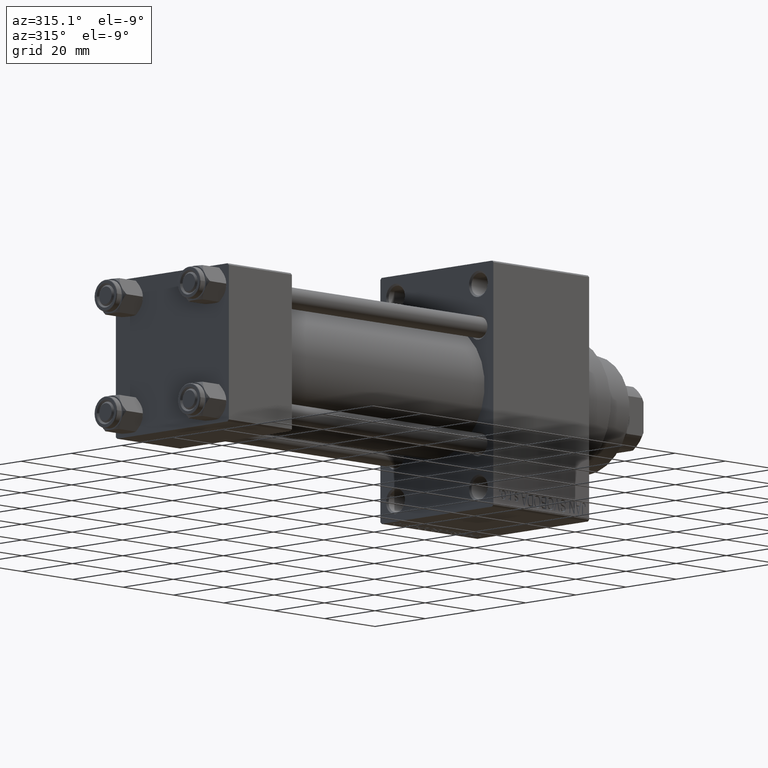
[diagram: clean part render]
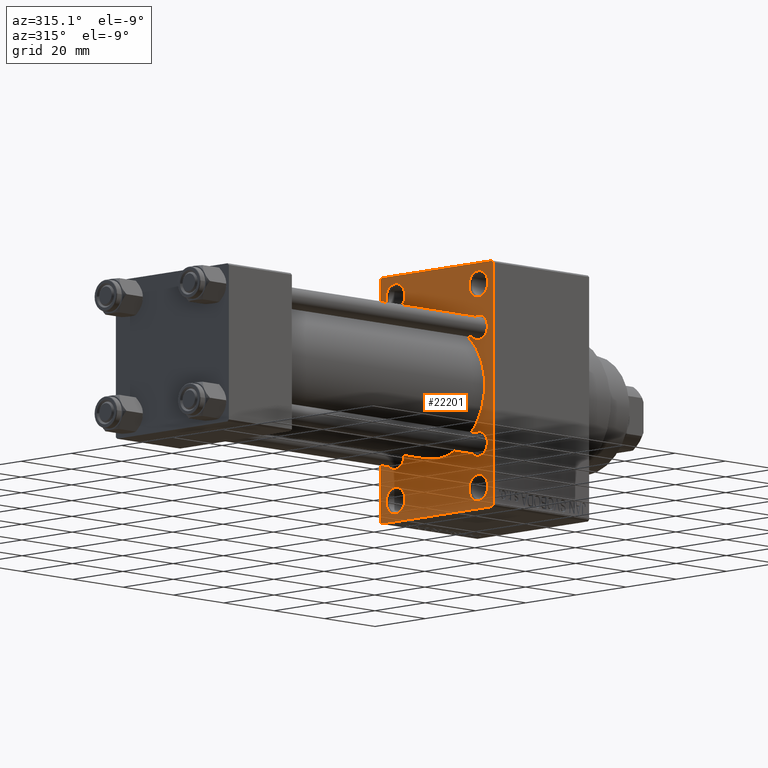
[diagram: same view with one face highlighted and labeled with its STEP entity id]
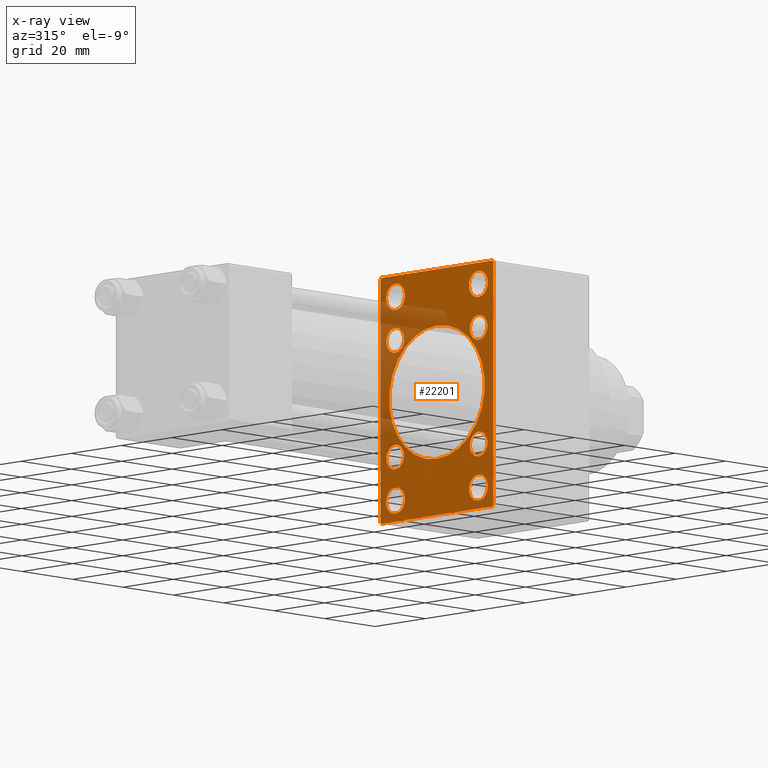
[diagram: x-ray of the same camera — body ghosted, the highlighted face saturated]
A machine part, auxiliary view. The second image highlights one B-rep face of the part: STEP entity #22201.
The next image is the same camera in x-ray: the body ghosted, the highlighted face saturated — about 21% of this face is hidden behind the body in this view.
In plain terms, the highlighted planar face has unit normal (-1, 0, 0).
Its self-contained STEP definition (entity closure, byte-faithful):
#157 = CARTESIAN_POINT ( 'NONE',  ( 105.0000000000000142, -16.50000000000000000, 29.00000000000000711 ) ) ;
#773 = ORIENTED_EDGE ( 'NONE', *, *, #35898, .T. ) ;
#812 = VERTEX_POINT ( 'NONE', #14534 ) ;
#868 = EDGE_LOOP ( 'NONE', ( #29593, #22545 ) ) ;
#870 = FACE_BOUND ( 'NONE', #8402, .T. ) ;
#884 = CARTESIAN_POINT ( 'NONE',  ( 105.0000000000000142, 21.99999999999999645, -35.00000000000000000 ) ) ;
#975 = DIRECTION ( 'NONE',  ( 1.000000000000000000, 0.000000000000000000, 0.000000000000000000 ) ) ;
#978 = EDGE_CURVE ( 'NONE', #30605, #9976, #42827, .T. ) ;
#1110 = DIRECTION ( 'NONE',  ( -0.000000000000000000, 0.000000000000000000, 1.000000000000000000 ) ) ;
#1122 = DIRECTION ( 'NONE',  ( 0.000000000000000000, 0.000000000000000000, -1.000000000000000000 ) ) ;
#1346 = DIRECTION ( 'NONE',  ( -1.000000000000000000, 0.000000000000000000, -0.000000000000000000 ) ) ;
#1371 = AXIS2_PLACEMENT_3D ( 'NONE', #17469, #21507, #16763 ) ;
#1666 = DIRECTION ( 'NONE',  ( 0.000000000000000000, 0.000000000000000000, -1.000000000000000000 ) ) ;
#2115 = CARTESIAN_POINT ( 'NONE',  ( 105.0000000000000142, 16.50000000000000000, -25.25000000000009948 ) ) ;
#2210 = VERTEX_POINT ( 'NONE', #2115 ) ;
#2261 = AXIS2_PLACEMENT_3D ( 'NONE', #157, #28826, #36931 ) ;
#2579 = AXIS2_PLACEMENT_3D ( 'NONE', #18202, #975, #14868 ) ;
#2844 = ORIENTED_EDGE ( 'NONE', *, *, #9799, .T. ) ;
#3113 = CARTESIAN_POINT ( 'NONE',  ( 105.0000000000000142, 16.59999999999999787, -13.09999999999999787 ) ) ;
#3239 = DIRECTION ( 'NONE',  ( 1.000000000000000000, 0.000000000000000000, 0.000000000000000000 ) ) ;
#3358 = CIRCLE ( 'NONE', #2579, 3.749999999999885425 ) ;
#3401 = ORIENTED_EDGE ( 'NONE', *, *, #8366, .T. ) ;
#3477 = EDGE_LOOP ( 'NONE', ( #39412, #45117, #42263, #13581, #25086, #40739, #43202, #34432 ) ) ;
#3483 = VECTOR ( 'NONE', #33588, 1000.000000000000114 ) ;
#3523 = EDGE_CURVE ( 'NONE', #44610, #8597, #15873, .T. ) ;
#3662 = CIRCLE ( 'NONE', #1371, 3.500000000000006661 ) ;
#3766 = AXIS2_PLACEMENT_3D ( 'NONE', #40738, #1346, #1110 ) ;
#3823 = VERTEX_POINT ( 'NONE', #46676 ) ;
#3854 = EDGE_LOOP ( 'NONE', ( #3401, #16388 ) ) ;
#3864 = AXIS2_PLACEMENT_3D ( 'NONE', #6884, #31951, #10485 ) ;
#4187 = ORIENTED_EDGE ( 'NONE', *, *, #38868, .T. ) ;
#4443 = CIRCLE ( 'NONE', #10559, 19.00000000000000000 ) ;
#4636 = EDGE_LOOP ( 'NONE', ( #25228, #41855 ) ) ;
#4650 = EDGE_CURVE ( 'NONE', #34070, #37117, #23184, .T. ) ;
#4706 = VERTEX_POINT ( 'NONE', #7137 ) ;
#4872 = CARTESIAN_POINT ( 'NONE',  ( 105.0000000000000142, -28.49999999999999289, -28.49999999999999289 ) ) ;
#5154 = FACE_BOUND ( 'NONE', #45948, .T. ) ;
#5353 = AXIS2_PLACEMENT_3D ( 'NONE', #9212, #12566, #24020 ) ;
#5717 = DIRECTION ( 'NONE',  ( 0.000000000000000000, -1.000000000000000000, 0.000000000000000000 ) ) ;
#5910 = CARTESIAN_POINT ( 'NONE',  ( 105.0000000000000142, -16.50000000000000000, -32.74999999999989342 ) ) ;
#5979 = CARTESIAN_POINT ( 'NONE',  ( 105.0000000000000142, -16.50000000000000000, -25.25000000000009948 ) ) ;
#6085 = CARTESIAN_POINT ( 'NONE',  ( 105.0000000000000142, -21.99999999999997513, -35.00000000000000000 ) ) ;
#6335 = ORIENTED_EDGE ( 'NONE', *, *, #44783, .T. ) ;
#6596 = DIRECTION ( 'NONE',  ( 1.000000000000000000, 0.000000000000000000, 0.000000000000000000 ) ) ;
#6716 = EDGE_CURVE ( 'NONE', #18221, #8597, #12430, .T. ) ;
#6767 = CARTESIAN_POINT ( 'NONE',  ( 105.0000000000000142, 16.59999999999999787, -16.60000000000000497 ) ) ;
#6792 = AXIS2_PLACEMENT_3D ( 'NONE', #24037, #42393, #34754 ) ;
#6884 = CARTESIAN_POINT ( 'NONE',  ( 105.0000000000000142, -16.59999999999999076, -16.60000000000000853 ) ) ;
#6925 = CIRCLE ( 'NONE', #13794, 3.749999999999895639 ) ;
#7137 = CARTESIAN_POINT ( 'NONE',  ( 105.0000000000000142, 21.99999999999999645, 35.00000000000000000 ) ) ;
#7552 = CARTESIAN_POINT ( 'NONE',  ( 105.0000000000000142, -21.99999999999998934, 35.00000000000000000 ) ) ;
#7659 = CARTESIAN_POINT ( 'NONE',  ( 105.0000000000000142, -16.50000000000000000, -28.99999999999999289 ) ) ;
#7739 = EDGE_CURVE ( 'NONE', #20029, #34331, #46092, .T. ) ;
#7799 = VERTEX_POINT ( 'NONE', #5910 ) ;
#8280 = FACE_BOUND ( 'NONE', #17570, .T. ) ;
#8366 = EDGE_CURVE ( 'NONE', #2210, #26941, #32400, .T. ) ;
#8402 = EDGE_LOOP ( 'NONE', ( #45724, #4187 ) ) ;
#8597 = VERTEX_POINT ( 'NONE', #10571 ) ;
#8698 = AXIS2_PLACEMENT_3D ( 'NONE', #16731, #20540, #17434 ) ;
#8741 = AXIS2_PLACEMENT_3D ( 'NONE', #24219, #42335, #35407 ) ;
#9212 = CARTESIAN_POINT ( 'NONE',  ( 105.0000000000000142, -16.50000000000000000, -28.99999999999999289 ) ) ;
#9312 = VECTOR ( 'NONE', #31123, 1000.000000000000114 ) ;
#9344 = EDGE_CURVE ( 'NONE', #18221, #11885, #40977, .T. ) ;
#9370 = CARTESIAN_POINT ( 'NONE',  ( 105.0000000000000142, 16.59999999999999787, 13.09999999999999609 ) ) ;
#9515 = EDGE_CURVE ( 'NONE', #31093, #29765, #19735, .T. ) ;
#9799 = EDGE_CURVE ( 'NONE', #37117, #34070, #11881, .T. ) ;
#9976 = VERTEX_POINT ( 'NONE', #14418 ) ;
#10122 = CARTESIAN_POINT ( 'NONE',  ( 105.0000000000000142, -16.59999999999999076, 13.10000000000000142 ) ) ;
#10139 = CARTESIAN_POINT ( 'NONE',  ( 105.0000000000000142, 28.49999999999999645, -28.49999999999999645 ) ) ;
#10485 = DIRECTION ( 'NONE',  ( 0.000000000000000000, 0.000000000000000000, 1.000000000000000000 ) ) ;
#10559 = AXIS2_PLACEMENT_3D ( 'NONE', #47013, #12345, #1122 ) ;
#10571 = CARTESIAN_POINT ( 'NONE',  ( 105.0000000000000142, -22.50000000000000355, -34.49999999999998579 ) ) ;
#11090 = DIRECTION ( 'NONE',  ( 1.000000000000000000, 0.000000000000000000, 0.000000000000000000 ) ) ;
#11311 = AXIS2_PLACEMENT_3D ( 'NONE', #47075, #39230, #36354 ) ;
#11555 = VERTEX_POINT ( 'NONE', #9370 ) ;
#11875 = FACE_BOUND ( 'NONE', #46229, .T. ) ;
#11881 = CIRCLE ( 'NONE', #38537, 3.500000000000006661 ) ;
#11885 = VERTEX_POINT ( 'NONE', #7552 ) ;
#12262 = DIRECTION ( 'NONE',  ( 1.000000000000000000, 0.000000000000000000, 0.000000000000000000 ) ) ;
#12345 = DIRECTION ( 'NONE',  ( 1.000000000000000000, 0.000000000000000000, 0.000000000000000000 ) ) ;
#12430 = LINE ( 'NONE', #34131, #27024 ) ;
#12503 = DIRECTION ( 'NONE',  ( 0.000000000000000000, 0.000000000000000000, 1.000000000000000000 ) ) ;
#12566 = DIRECTION ( 'NONE',  ( 1.000000000000000000, 0.000000000000000000, 0.000000000000000000 ) ) ;
#13538 = VERTEX_POINT ( 'NONE', #5979 ) ;
#13581 = ORIENTED_EDGE ( 'NONE', *, *, #9344, .T. ) ;
#13794 = AXIS2_PLACEMENT_3D ( 'NONE', #7659, #33653, #26497 ) ;
#14000 = VECTOR ( 'NONE', #19447, 1000.000000000000114 ) ;
#14134 = AXIS2_PLACEMENT_3D ( 'NONE', #45762, #45043, #42186 ) ;
#14418 = CARTESIAN_POINT ( 'NONE',  ( 105.0000000000000142, -16.59999999999999076, -13.10000000000000142 ) ) ;
#14534 = CARTESIAN_POINT ( 'NONE',  ( 105.0000000000000142, 16.50000000000000000, 32.74999999999989342 ) ) ;
#14868 = DIRECTION ( 'NONE',  ( 0.000000000000000000, 0.000000000000000000, 1.000000000000000000 ) ) ;
#15873 = LINE ( 'NONE', #4872, #14000 ) ;
#16060 = LINE ( 'NONE', #27028, #17633 ) ;
#16388 = ORIENTED_EDGE ( 'NONE', *, *, #19259, .T. ) ;
#16731 = CARTESIAN_POINT ( 'NONE',  ( 105.0000000000000142, 16.59999999999999787, -16.60000000000000497 ) ) ;
#16763 = DIRECTION ( 'NONE',  ( 0.000000000000000000, 0.000000000000000000, 1.000000000000000000 ) ) ;
#17434 = DIRECTION ( 'NONE',  ( 0.000000000000000000, 0.000000000000000000, 1.000000000000000000 ) ) ;
#17469 = CARTESIAN_POINT ( 'NONE',  ( 105.0000000000000142, 16.59999999999999787, 16.60000000000000497 ) ) ;
#17570 = EDGE_LOOP ( 'NONE', ( #34293, #34076 ) ) ;
#17633 = VECTOR ( 'NONE', #44453, 1000.000000000000000 ) ;
#17929 = EDGE_CURVE ( 'NONE', #11555, #25171, #33376, .T. ) ;
#17944 = VECTOR ( 'NONE', #5717, 1000.000000000000000 ) ;
#18105 = ORIENTED_EDGE ( 'NONE', *, *, #25739, .T. ) ;
#18202 = CARTESIAN_POINT ( 'NONE',  ( 105.0000000000000142, 16.50000000000000000, 29.00000000000000355 ) ) ;
#18221 = VERTEX_POINT ( 'NONE', #30173 ) ;
#18726 = CARTESIAN_POINT ( 'NONE',  ( 105.0000000000000142, -16.50000000000000000, 29.00000000000000711 ) ) ;
#18734 = EDGE_CURVE ( 'NONE', #25171, #11555, #3662, .T. ) ;
#18760 = EDGE_CURVE ( 'NONE', #40146, #29119, #4443, .T. ) ;
#19060 = CARTESIAN_POINT ( 'NONE',  ( 105.0000000000000142, -16.59999999999999076, 20.10000000000001208 ) ) ;
#19259 = EDGE_CURVE ( 'NONE', #26941, #2210, #31868, .T. ) ;
#19267 = CARTESIAN_POINT ( 'NONE',  ( 105.0000000000000142, -28.49999999999999645, 28.49999999999999645 ) ) ;
#19447 = DIRECTION ( 'NONE',  ( 0.000000000000000000, -0.7071067811865474617, 0.7071067811865474617 ) ) ;
#19735 = LINE ( 'NONE', #38336, #31690 ) ;
#20029 = VERTEX_POINT ( 'NONE', #19060 ) ;
#20540 = DIRECTION ( 'NONE',  ( 1.000000000000000000, 0.000000000000000000, 0.000000000000000000 ) ) ;
#21399 = CARTESIAN_POINT ( 'NONE',  ( 105.0000000000000142, -2.602085213965210642E-15, 0.000000000000000000 ) ) ;
#21507 = DIRECTION ( 'NONE',  ( 1.000000000000000000, 0.000000000000000000, 0.000000000000000000 ) ) ;
#22019 = EDGE_CURVE ( 'NONE', #24326, #33519, #28166, .T. ) ;
#22201 = ADVANCED_FACE ( 'NONE', ( #45006, #37388, #23551, #11875, #41435, #34044, #5154, #8280, #870, #27126 ), #41674, .T. ) ;
#22379 = AXIS2_PLACEMENT_3D ( 'NONE', #39292, #6596, #24522 ) ;
#22545 = ORIENTED_EDGE ( 'NONE', *, *, #17929, .T. ) ;
#23184 = CIRCLE ( 'NONE', #8698, 3.500000000000006661 ) ;
#23551 = FACE_BOUND ( 'NONE', #3854, .T. ) ;
#23883 = CARTESIAN_POINT ( 'NONE',  ( 105.0000000000000142, 22.49999999999999645, 35.00000000000000000 ) ) ;
#24020 = DIRECTION ( 'NONE',  ( 0.000000000000000000, 0.000000000000000000, 1.000000000000000000 ) ) ;
#24037 = CARTESIAN_POINT ( 'NONE',  ( 105.0000000000000142, 16.59999999999999787, 16.60000000000000497 ) ) ;
#24219 = CARTESIAN_POINT ( 'NONE',  ( 105.0000000000000142, -16.59999999999999076, 16.60000000000000853 ) ) ;
#24276 = EDGE_CURVE ( 'NONE', #7799, #13538, #35850, .T. ) ;
#24326 = VERTEX_POINT ( 'NONE', #34738 ) ;
#24522 = DIRECTION ( 'NONE',  ( 0.000000000000000000, 0.000000000000000000, 1.000000000000000000 ) ) ;
#24708 = LINE ( 'NONE', #10139, #35314 ) ;
#24733 = CARTESIAN_POINT ( 'NONE',  ( 105.0000000000000142, 16.59999999999999787, 20.10000000000001208 ) ) ;
#24862 = CARTESIAN_POINT ( 'NONE',  ( 105.0000000000000142, -2.752562955852396712E-16, -19.00000000000000000 ) ) ;
#25013 = CARTESIAN_POINT ( 'NONE',  ( 105.0000000000000142, -16.59999999999999076, -16.60000000000000853 ) ) ;
#25086 = ORIENTED_EDGE ( 'NONE', *, *, #39938, .F. ) ;
#25171 = VERTEX_POINT ( 'NONE', #24733 ) ;
#25228 = ORIENTED_EDGE ( 'NONE', *, *, #7739, .T. ) ;
#25719 = ORIENTED_EDGE ( 'NONE', *, *, #24276, .T. ) ;
#25739 = EDGE_CURVE ( 'NONE', #13538, #7799, #6925, .T. ) ;
#25908 = EDGE_CURVE ( 'NONE', #9976, #30605, #39692, .T. ) ;
#25922 = EDGE_LOOP ( 'NONE', ( #45834, #34360 ) ) ;
#26394 = EDGE_CURVE ( 'NONE', #30328, #44610, #16060, .T. ) ;
#26497 = DIRECTION ( 'NONE',  ( 0.000000000000000000, 0.000000000000000000, 1.000000000000000000 ) ) ;
#26776 = CARTESIAN_POINT ( 'NONE',  ( 105.0000000000000142, -16.59999999999999076, -20.10000000000001208 ) ) ;
#26941 = VERTEX_POINT ( 'NONE', #38597 ) ;
#27024 = VECTOR ( 'NONE', #1666, 1000.000000000000000 ) ;
#27028 = CARTESIAN_POINT ( 'NONE',  ( 105.0000000000000142, 22.49999999999999645, -35.00000000000000000 ) ) ;
#27126 = FACE_OUTER_BOUND ( 'NONE', #3477, .T. ) ;
#27882 = DIRECTION ( 'NONE',  ( 1.000000000000000000, 0.000000000000000000, 0.000000000000000000 ) ) ;
#28166 = CIRCLE ( 'NONE', #2261, 3.749999999999888978 ) ;
#28816 = DIRECTION ( 'NONE',  ( 0.000000000000000000, 0.000000000000000000, 1.000000000000000000 ) ) ;
#28826 = DIRECTION ( 'NONE',  ( 1.000000000000000000, 0.000000000000000000, 0.000000000000000000 ) ) ;
#29105 = AXIS2_PLACEMENT_3D ( 'NONE', #25013, #27882, #28816 ) ;
#29119 = VERTEX_POINT ( 'NONE', #24862 ) ;
#29251 = LINE ( 'NONE', #43803, #9312 ) ;
#29323 = CIRCLE ( 'NONE', #8741, 3.500000000000003109 ) ;
#29483 = EDGE_LOOP ( 'NONE', ( #18105, #25719 ) ) ;
#29593 = ORIENTED_EDGE ( 'NONE', *, *, #18734, .T. ) ;
#29765 = VERTEX_POINT ( 'NONE', #32529 ) ;
#30132 = CARTESIAN_POINT ( 'NONE',  ( 105.0000000000000142, -16.50000000000000000, 25.25000000000012079 ) ) ;
#30173 = CARTESIAN_POINT ( 'NONE',  ( 105.0000000000000142, -22.50000000000000355, 34.50000000000000000 ) ) ;
#30328 = VERTEX_POINT ( 'NONE', #884 ) ;
#30373 = CARTESIAN_POINT ( 'NONE',  ( 105.0000000000000142, 16.50000000000000000, -28.99999999999999289 ) ) ;
#30605 = VERTEX_POINT ( 'NONE', #26776 ) ;
#30736 = CIRCLE ( 'NONE', #33033, 3.749999999999888978 ) ;
#31093 = VERTEX_POINT ( 'NONE', #40987 ) ;
#31123 = DIRECTION ( 'NONE',  ( 0.000000000000000000, 0.7071067811865474617, -0.7071067811865474617 ) ) ;
#31690 = VECTOR ( 'NONE', #34052, 1000.000000000000000 ) ;
#31868 = CIRCLE ( 'NONE', #11311, 3.749999999999895639 ) ;
#31951 = DIRECTION ( 'NONE',  ( 1.000000000000000000, 0.000000000000000000, 0.000000000000000000 ) ) ;
#32109 = CARTESIAN_POINT ( 'NONE',  ( 105.0000000000000142, 16.59999999999999787, -20.10000000000000853 ) ) ;
#32122 = EDGE_CURVE ( 'NONE', #4706, #31093, #29251, .T. ) ;
#32400 = CIRCLE ( 'NONE', #36982, 3.749999999999895639 ) ;
#32529 = CARTESIAN_POINT ( 'NONE',  ( 105.0000000000000142, 22.49999999999999645, -34.50000000000000000 ) ) ;
#32660 = CARTESIAN_POINT ( 'NONE',  ( 105.0000000000000142, -2.602085213965210642E-15, 19.00000000000000000 ) ) ;
#33033 = AXIS2_PLACEMENT_3D ( 'NONE', #18726, #11090, #37088 ) ;
#33376 = CIRCLE ( 'NONE', #6792, 3.500000000000006661 ) ;
#33519 = VERTEX_POINT ( 'NONE', #30132 ) ;
#33588 = DIRECTION ( 'NONE',  ( -0.000000000000000000, 0.7071067811865474617, 0.7071067811865474617 ) ) ;
#33653 = DIRECTION ( 'NONE',  ( 1.000000000000000000, 0.000000000000000000, 0.000000000000000000 ) ) ;
#33897 = CIRCLE ( 'NONE', #36944, 19.00000000000000000 ) ;
#34044 = FACE_BOUND ( 'NONE', #868, .T. ) ;
#34052 = DIRECTION ( 'NONE',  ( 0.000000000000000000, 0.000000000000000000, -1.000000000000000000 ) ) ;
#34070 = VERTEX_POINT ( 'NONE', #32109 ) ;
#34076 = ORIENTED_EDGE ( 'NONE', *, *, #978, .T. ) ;
#34131 = CARTESIAN_POINT ( 'NONE',  ( 105.0000000000000142, -22.50000000000000355, 35.00000000000000000 ) ) ;
#34293 = ORIENTED_EDGE ( 'NONE', *, *, #25908, .T. ) ;
#34331 = VERTEX_POINT ( 'NONE', #10122 ) ;
#34360 = ORIENTED_EDGE ( 'NONE', *, *, #43601, .T. ) ;
#34432 = ORIENTED_EDGE ( 'NONE', *, *, #43508, .T. ) ;
#34738 = CARTESIAN_POINT ( 'NONE',  ( 105.0000000000000142, -16.50000000000000000, 32.74999999999990052 ) ) ;
#34754 = DIRECTION ( 'NONE',  ( 0.000000000000000000, 0.000000000000000000, 1.000000000000000000 ) ) ;
#35314 = VECTOR ( 'NONE', #43292, 1000.000000000000114 ) ;
#35407 = DIRECTION ( 'NONE',  ( 0.000000000000000000, 0.000000000000000000, 1.000000000000000000 ) ) ;
#35850 = CIRCLE ( 'NONE', #5353, 3.749999999999895639 ) ;
#35898 = EDGE_CURVE ( 'NONE', #812, #3823, #45199, .T. ) ;
#36354 = DIRECTION ( 'NONE',  ( 0.000000000000000000, 0.000000000000000000, 1.000000000000000000 ) ) ;
#36931 = DIRECTION ( 'NONE',  ( 0.000000000000000000, 0.000000000000000000, 1.000000000000000000 ) ) ;
#36944 = AXIS2_PLACEMENT_3D ( 'NONE', #21399, #3239, #45966 ) ;
#36982 = AXIS2_PLACEMENT_3D ( 'NONE', #30373, #12262, #12503 ) ;
#37088 = DIRECTION ( 'NONE',  ( 0.000000000000000000, 0.000000000000000000, 1.000000000000000000 ) ) ;
#37117 = VERTEX_POINT ( 'NONE', #3113 ) ;
#37388 = FACE_BOUND ( 'NONE', #29483, .T. ) ;
#38336 = CARTESIAN_POINT ( 'NONE',  ( 105.0000000000000142, 22.49999999999999645, 35.00000000000000000 ) ) ;
#38537 = AXIS2_PLACEMENT_3D ( 'NONE', #6767, #43272, #42803 ) ;
#38597 = CARTESIAN_POINT ( 'NONE',  ( 105.0000000000000142, 16.50000000000000000, -32.74999999999989342 ) ) ;
#38868 = EDGE_CURVE ( 'NONE', #29119, #40146, #33897, .T. ) ;
#39230 = DIRECTION ( 'NONE',  ( 1.000000000000000000, 0.000000000000000000, 0.000000000000000000 ) ) ;
#39292 = CARTESIAN_POINT ( 'NONE',  ( 105.0000000000000142, 16.50000000000000000, 29.00000000000000355 ) ) ;
#39412 = ORIENTED_EDGE ( 'NONE', *, *, #26394, .T. ) ;
#39692 = CIRCLE ( 'NONE', #3864, 3.500000000000006661 ) ;
#39938 = EDGE_CURVE ( 'NONE', #4706, #11885, #42000, .T. ) ;
#40146 = VERTEX_POINT ( 'NONE', #32660 ) ;
#40738 = CARTESIAN_POINT ( 'NONE',  ( 105.0000000000000142, 0.000000000000000000, 0.000000000000000000 ) ) ;
#40739 = ORIENTED_EDGE ( 'NONE', *, *, #32122, .T. ) ;
#40977 = LINE ( 'NONE', #19267, #3483 ) ;
#40987 = CARTESIAN_POINT ( 'NONE',  ( 105.0000000000000142, 22.49999999999999645, 34.50000000000000000 ) ) ;
#41435 = FACE_BOUND ( 'NONE', #4636, .T. ) ;
#41674 = PLANE ( 'NONE',  #3766 ) ;
#41855 = ORIENTED_EDGE ( 'NONE', *, *, #47148, .T. ) ;
#42000 = LINE ( 'NONE', #23883, #17944 ) ;
#42186 = DIRECTION ( 'NONE',  ( 0.000000000000000000, 0.000000000000000000, 1.000000000000000000 ) ) ;
#42263 = ORIENTED_EDGE ( 'NONE', *, *, #6716, .F. ) ;
#42335 = DIRECTION ( 'NONE',  ( 1.000000000000000000, 0.000000000000000000, 0.000000000000000000 ) ) ;
#42393 = DIRECTION ( 'NONE',  ( 1.000000000000000000, 0.000000000000000000, 0.000000000000000000 ) ) ;
#42803 = DIRECTION ( 'NONE',  ( 0.000000000000000000, 0.000000000000000000, 1.000000000000000000 ) ) ;
#42827 = CIRCLE ( 'NONE', #29105, 3.500000000000006661 ) ;
#43202 = ORIENTED_EDGE ( 'NONE', *, *, #9515, .T. ) ;
#43272 = DIRECTION ( 'NONE',  ( 1.000000000000000000, 0.000000000000000000, 0.000000000000000000 ) ) ;
#43292 = DIRECTION ( 'NONE',  ( -0.000000000000000000, -0.7071067811865474617, -0.7071067811865474617 ) ) ;
#43508 = EDGE_CURVE ( 'NONE', #29765, #30328, #24708, .T. ) ;
#43601 = EDGE_CURVE ( 'NONE', #33519, #24326, #30736, .T. ) ;
#43803 = CARTESIAN_POINT ( 'NONE',  ( 105.0000000000000142, 28.49999999999999645, 28.49999999999999645 ) ) ;
#44313 = ORIENTED_EDGE ( 'NONE', *, *, #4650, .T. ) ;
#44453 = DIRECTION ( 'NONE',  ( 0.000000000000000000, -1.000000000000000000, 0.000000000000000000 ) ) ;
#44610 = VERTEX_POINT ( 'NONE', #6085 ) ;
#44783 = EDGE_CURVE ( 'NONE', #3823, #812, #3358, .T. ) ;
#45006 = FACE_BOUND ( 'NONE', #25922, .T. ) ;
#45043 = DIRECTION ( 'NONE',  ( 1.000000000000000000, 0.000000000000000000, 0.000000000000000000 ) ) ;
#45117 = ORIENTED_EDGE ( 'NONE', *, *, #3523, .T. ) ;
#45199 = CIRCLE ( 'NONE', #22379, 3.749999999999885425 ) ;
#45724 = ORIENTED_EDGE ( 'NONE', *, *, #18760, .T. ) ;
#45762 = CARTESIAN_POINT ( 'NONE',  ( 105.0000000000000142, -16.59999999999999076, 16.60000000000000853 ) ) ;
#45834 = ORIENTED_EDGE ( 'NONE', *, *, #22019, .T. ) ;
#45948 = EDGE_LOOP ( 'NONE', ( #2844, #44313 ) ) ;
#45966 = DIRECTION ( 'NONE',  ( 0.000000000000000000, 0.000000000000000000, -1.000000000000000000 ) ) ;
#46092 = CIRCLE ( 'NONE', #14134, 3.500000000000003109 ) ;
#46229 = EDGE_LOOP ( 'NONE', ( #773, #6335 ) ) ;
#46676 = CARTESIAN_POINT ( 'NONE',  ( 105.0000000000000142, 16.50000000000000000, 25.25000000000011724 ) ) ;
#47013 = CARTESIAN_POINT ( 'NONE',  ( 105.0000000000000142, -2.602085213965210642E-15, 0.000000000000000000 ) ) ;
#47075 = CARTESIAN_POINT ( 'NONE',  ( 105.0000000000000142, 16.50000000000000000, -28.99999999999999289 ) ) ;
#47148 = EDGE_CURVE ( 'NONE', #34331, #20029, #29323, .T. ) ;